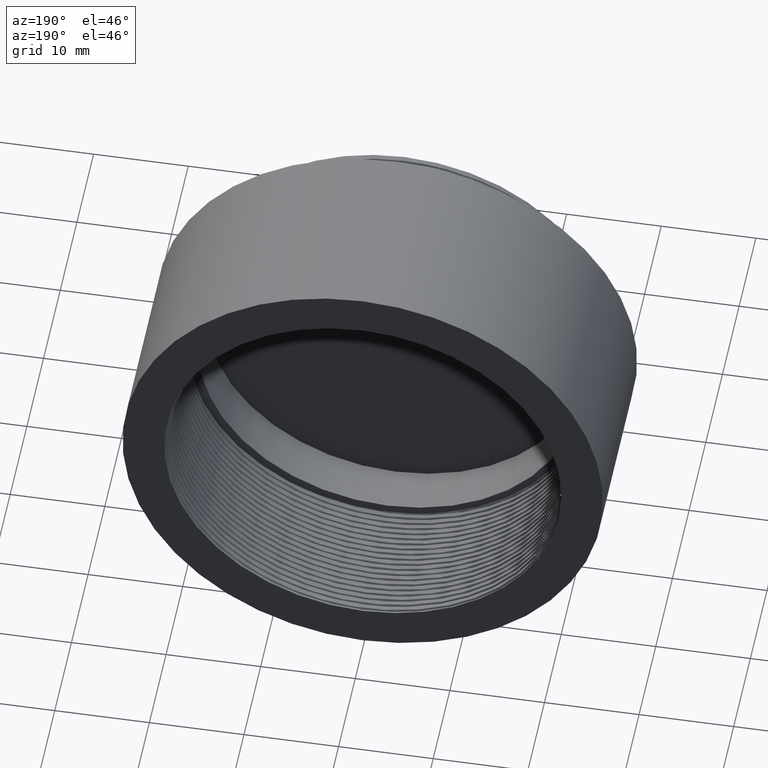
[diagram: clean part render]
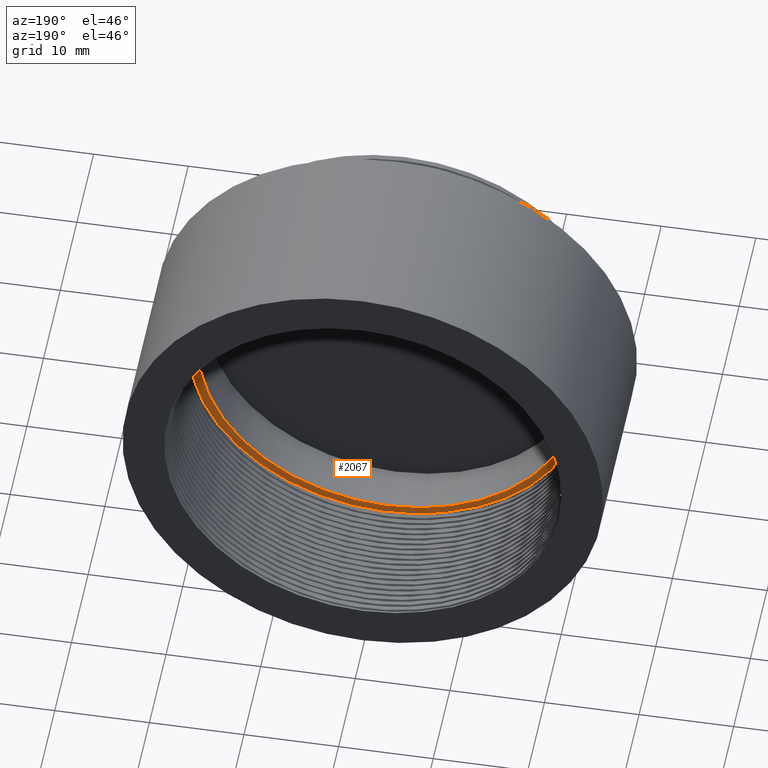
[diagram: same view with one face highlighted and labeled with its STEP entity id]
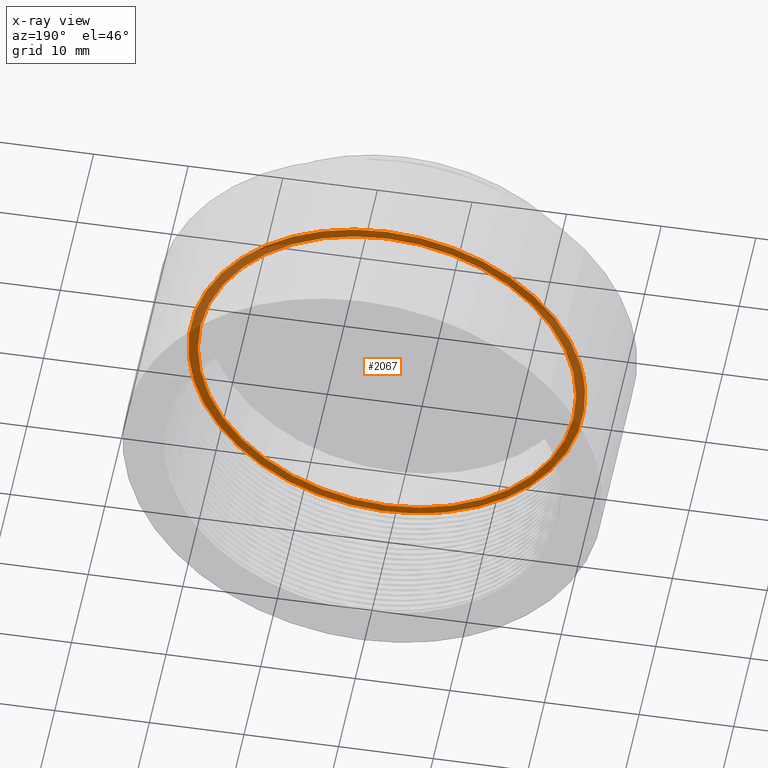
[diagram: x-ray of the same camera — body ghosted, the highlighted face saturated]
A machine part, auxiliary view. The second image highlights one B-rep face of the part: STEP entity #2067.
The next image is the same camera in x-ray: the body ghosted, the highlighted face saturated — about 37% of this face is hidden behind the body in this view.
In plain terms, the highlighted planar face has unit normal (0, 1, 0).
Its self-contained STEP definition (entity closure, byte-faithful):
#67 = AXIS2_PLACEMENT_3D ( 'NONE', #1812, #4398, #3862 ) ;
#129 = EDGE_CURVE ( 'NONE', #3786, #4633, #2328, .T. ) ;
#159 = AXIS2_PLACEMENT_3D ( 'NONE', #3907, #2388, #2904 ) ;
#376 = CARTESIAN_POINT ( 'NONE',  ( -18.77873871461722644, 11.00000000000000000, -9.191693726463455505 ) ) ;
#405 = DIRECTION ( 'NONE',  ( -0.000000000000000000, -1.000000000000000000, -0.000000000000000000 ) ) ;
#422 = CARTESIAN_POINT ( 'NONE',  ( 10.44557451184064689, 11.00000000000000000, -18.21784765326532707 ) ) ;
#468 = EDGE_LOOP ( 'NONE', ( #5116, #988 ) ) ;
#472 = CARTESIAN_POINT ( 'NONE',  ( -14.28500308307512157, 11.00000000000000178, -15.20167853915967093 ) ) ;
#549 = ORIENTED_EDGE ( 'NONE', *, *, #4081, .F. ) ;
#806 = DIRECTION ( 'NONE',  ( -0.000000000000000000, -1.000000000000000000, -0.000000000000000000 ) ) ;
#890 = CARTESIAN_POINT ( 'NONE',  ( -6.347638046852188687, 11.00000000000000000, -19.83731947274697660 ) ) ;
#924 = CARTESIAN_POINT ( 'NONE',  ( -7.450901189673629688, 11.00000000000000178, -19.48429218442386457 ) ) ;
#962 = CARTESIAN_POINT ( 'NONE',  ( -11.56546924864679582, 10.99999999999999645, -17.36054779719498598 ) ) ;
#988 = ORIENTED_EDGE ( 'NONE', *, *, #2694, .T. ) ;
#994 = B_SPLINE_CURVE_WITH_KNOTS ( 'NONE', 3,
 ( #1457, #4990, #376, #2466, #4519, #2502, #2436, #4487, #6564, #3011, #2979, #1427 ),
 .UNSPECIFIED., .F., .F.,
 ( 4, 2, 2, 2, 2, 4 ),
 ( 0.000000000000000000, 0.004349017211834803331, 0.008698034423669608398, 0.01304705163550441346, 0.01522156024142181513, 0.01739606884733921680 ),
 .UNSPECIFIED. ) ;
#1024 = ORIENTED_EDGE ( 'NONE', *, *, #129, .T. ) ;
#1051 = EDGE_CURVE ( 'NONE', #4633, #5589, #3874, .T. ) ;
#1131 = EDGE_CURVE ( 'NONE', #5589, #4095, #994, .T. ) ;
#1181 = CARTESIAN_POINT ( 'NONE',  ( -17.25657555197280502, 11.00000000000000178, -11.66286212114017218 ) ) ;
#1254 = CIRCLE ( 'NONE', #3934, 21.00000000000000000 ) ;
#1282 = CARTESIAN_POINT ( 'NONE',  ( 10.44557451184064689, 11.00000000000000000, -18.21784765326532707 ) ) ;
#1308 = PLANE ( 'NONE',  #67 ) ;
#1382 = CARTESIAN_POINT ( 'NONE',  ( 0.000000000000000000, 11.00000000000000000, 0.000000000000000000 ) ) ;
#1427 = CARTESIAN_POINT ( 'NONE',  ( -20.41574200663878713, 11.00000000000000355, 4.919093241479005840 ) ) ;
#1457 = CARTESIAN_POINT ( 'NONE',  ( -17.25657555197280502, 11.00000000000000178, -11.66286212114017218 ) ) ;
#1471 = CARTESIAN_POINT ( 'NONE',  ( -3.552548976604490871, 10.99999999999999289, -20.56513380295870164 ) ) ;
#1506 = CARTESIAN_POINT ( 'NONE',  ( -6.347638046852188687, 11.00000000000000000, -19.83731947274697660 ) ) ;
#1577 = CIRCLE ( 'NONE', #3409, 20.00000000000000000 ) ;
#1609 = CARTESIAN_POINT ( 'NONE',  ( 2.449293598294706513E-15, 11.00000000000000000, 20.00000000000000000 ) ) ;
#1671 = CIRCLE ( 'NONE', #5979, 20.00000000000000000 ) ;
#1812 = CARTESIAN_POINT ( 'NONE',  ( 20.00000000000000000, 11.00000000000000000, 0.000000000000000000 ) ) ;
#2006 = VERTEX_POINT ( 'NONE', #6370 ) ;
#2067 = ADVANCED_FACE ( 'NONE', ( #4361, #6438 ), #1308, .T. ) ;
#2114 = ORIENTED_EDGE ( 'NONE', *, *, #1131, .T. ) ;
#2328 = B_SPLINE_CURVE_WITH_KNOTS ( 'NONE', 3,
 ( #422, #2481, #4025, #5647, #2582, #6124, #4631, #6091, #1471, #3589, #3527, #1506 ),
 .UNSPECIFIED., .F., .F.,
 ( 4, 2, 2, 2, 2, 4 ),
 ( 4.906538933386797396E-18, 0.004346275723193785377, 0.008692551446387565550, 0.01303882716958134659, 0.01521196503117823798, 0.01738510289277513110 ),
 .UNSPECIFIED. ) ;
#2388 = DIRECTION ( 'NONE',  ( -0.000000000000000000, -1.000000000000000000, -0.000000000000000000 ) ) ;
#2436 = CARTESIAN_POINT ( 'NONE',  ( -20.97757135080604840, 11.00000000000000355, -0.8296810524888846849 ) ) ;
#2466 = CARTESIAN_POINT ( 'NONE',  ( -19.89639293851965718, 10.99999999999999289, -6.518523065786795634 ) ) ;
#2481 = CARTESIAN_POINT ( 'NONE',  ( 9.181531173413548075, 10.99999999999999822, -18.92587871546372469 ) ) ;
#2502 = CARTESIAN_POINT ( 'NONE',  ( -20.85547841930600654, 11.00000000000000178, -2.282339429273200881 ) ) ;
#2534 = CARTESIAN_POINT ( 'NONE',  ( -15.88190522529929893, 11.00000000000000000, -13.52469703564646153 ) ) ;
#2582 = CARTESIAN_POINT ( 'NONE',  ( 3.652910249071408710, 11.00000000000000000, -20.65627913813112571 ) ) ;
#2694 = EDGE_CURVE ( 'NONE', #3198, #2776, #1577, .T. ) ;
#2776 = VERTEX_POINT ( 'NONE', #5564 ) ;
#2904 = DIRECTION ( 'NONE',  ( 0.000000000000000000, 0.000000000000000000, -1.000000000000000000 ) ) ;
#2940 = CARTESIAN_POINT ( 'NONE',  ( 0.000000000000000000, 11.00000000000000000, 0.000000000000000000 ) ) ;
#2979 = CARTESIAN_POINT ( 'NONE',  ( -20.57849689581491859, 10.99999999999999645, 4.212729550549727975 ) ) ;
#3007 = DIRECTION ( 'NONE',  ( 0.000000000000000000, 0.000000000000000000, -1.000000000000000000 ) ) ;
#3011 = CARTESIAN_POINT ( 'NONE',  ( -20.70414479123860119, 10.99999999999999467, 3.500956147323097678 ) ) ;
#3039 = CARTESIAN_POINT ( 'NONE',  ( -16.60793923113605786, 10.99999999999999645, -12.62259580915005586 ) ) ;
#3198 = VERTEX_POINT ( 'NONE', #1609 ) ;
#3409 = AXIS2_PLACEMENT_3D ( 'NONE', #2940, #405, #3007 ) ;
#3527 = CARTESIAN_POINT ( 'NONE',  ( -5.659957502267151774, 11.00000000000000711, -20.06508725904164692 ) ) ;
#3589 = CARTESIAN_POINT ( 'NONE',  ( -4.963370032076171334, 10.99999999999999822, -20.25606511600986792 ) ) ;
#3696 = DIRECTION ( 'NONE',  ( -0.000000000000000000, -1.000000000000000000, -0.000000000000000000 ) ) ;
#3786 = VERTEX_POINT ( 'NONE', #1282 ) ;
#3800 = EDGE_CURVE ( 'NONE', #2776, #3198, #1671, .T. ) ;
#3862 = DIRECTION ( 'NONE',  ( 0.000000000000000000, -0.000000000000000000, 1.000000000000000000 ) ) ;
#3874 = B_SPLINE_CURVE_WITH_KNOTS ( 'NONE', 3,
 ( #890, #924, #5569, #4045, #962, #6528, #472, #2534, #3039, #6112 ),
 .UNSPECIFIED., .F., .F.,
 ( 4, 2, 2, 2, 4 ),
 ( 0.000000000000000000, 0.003475080584099137729, 0.006950161168198275459, 0.01042524175229741362, 0.01390032233639654745 ),
 .UNSPECIFIED. ) ;
#3907 = CARTESIAN_POINT ( 'NONE',  ( 0.000000000000000000, 11.00000000000000000, 0.000000000000000000 ) ) ;
#3934 = AXIS2_PLACEMENT_3D ( 'NONE', #6263, #3696, #5755 ) ;
#4025 = CARTESIAN_POINT ( 'NONE',  ( 7.844840778985266994, 11.00000000000000000, -19.50198697001346915 ) ) ;
#4045 = CARTESIAN_POINT ( 'NONE',  ( -10.58028649656549369, 11.00000000000000533, -17.97806007680054563 ) ) ;
#4081 = EDGE_CURVE ( 'NONE', #3786, #2006, #5430, .T. ) ;
#4095 = VERTEX_POINT ( 'NONE', #4949 ) ;
#4173 = EDGE_LOOP ( 'NONE', ( #549, #1024, #4297, #2114, #6212 ) ) ;
#4297 = ORIENTED_EDGE ( 'NONE', *, *, #1051, .T. ) ;
#4361 = FACE_BOUND ( 'NONE', #468, .T. ) ;
#4398 = DIRECTION ( 'NONE',  ( 0.000000000000000000, 1.000000000000000000, 0.000000000000000000 ) ) ;
#4487 = CARTESIAN_POINT ( 'NONE',  ( -20.93398921636196164, 11.00000000000000533, 1.342753826301430253 ) ) ;
#4519 = CARTESIAN_POINT ( 'NONE',  ( -20.31579842538423009, 10.99999999999999645, -5.121554182538229583 ) ) ;
#4631 = CARTESIAN_POINT ( 'NONE',  ( -0.6788266280844930112, 10.99999999999999467, -20.92463562656354981 ) ) ;
#4633 = VERTEX_POINT ( 'NONE', #6019 ) ;
#4949 = CARTESIAN_POINT ( 'NONE',  ( -20.41574200663878713, 11.00000000000000355, 4.919093241479005840 ) ) ;
#4990 = CARTESIAN_POINT ( 'NONE',  ( -18.08031703049266881, 11.00000000000000355, -10.46987655983507892 ) ) ;
#5116 = ORIENTED_EDGE ( 'NONE', *, *, #3800, .T. ) ;
#5430 = CIRCLE ( 'NONE', #159, 21.00000000000000000 ) ;
#5491 = EDGE_CURVE ( 'NONE', #2006, #4095, #1254, .T. ) ;
#5564 = CARTESIAN_POINT ( 'NONE',  ( 0.000000000000000000, 11.00000000000000000, -20.00000000000000000 ) ) ;
#5569 = CARTESIAN_POINT ( 'NONE',  ( -8.521849247589932119, 11.00000000000000355, -19.04025188582878769 ) ) ;
#5589 = VERTEX_POINT ( 'NONE', #1181 ) ;
#5647 = CARTESIAN_POINT ( 'NONE',  ( 5.081514409065330362, 10.99999999999999467, -20.36719136161583421 ) ) ;
#5755 = DIRECTION ( 'NONE',  ( 0.000000000000000000, 0.000000000000000000, -1.000000000000000000 ) ) ;
#5979 = AXIS2_PLACEMENT_3D ( 'NONE', #1382, #806, #6377 ) ;
#6019 = CARTESIAN_POINT ( 'NONE',  ( -6.347638046852188687, 11.00000000000000000, -19.83731947274697660 ) ) ;
#6091 = CARTESIAN_POINT ( 'NONE',  ( -2.836854778268949939, 10.99999999999999467, -20.68330388205567516 ) ) ;
#6112 = CARTESIAN_POINT ( 'NONE',  ( -17.25657555197280502, 11.00000000000000178, -11.66286212114017218 ) ) ;
#6124 = CARTESIAN_POINT ( 'NONE',  ( 0.7779951507865040528, 11.00000000000000178, -20.93429737730595974 ) ) ;
#6212 = ORIENTED_EDGE ( 'NONE', *, *, #5491, .F. ) ;
#6263 = CARTESIAN_POINT ( 'NONE',  ( 0.000000000000000000, 11.00000000000000000, 0.000000000000000000 ) ) ;
#6370 = CARTESIAN_POINT ( 'NONE',  ( 2.571758278209441661E-15, 11.00000000000000000, 21.00000000000000000 ) ) ;
#6377 = DIRECTION ( 'NONE',  ( 0.000000000000000000, 0.000000000000000000, -1.000000000000000000 ) ) ;
#6438 = FACE_OUTER_BOUND ( 'NONE', #4173, .T. ) ;
#6528 = CARTESIAN_POINT ( 'NONE',  ( -13.41600355840279413, 10.99999999999999822, -15.97371426065366506 ) ) ;
#6564 = CARTESIAN_POINT ( 'NONE',  ( -20.88191635972220439, 10.99999999999999645, 2.066690474971456748 ) ) ;